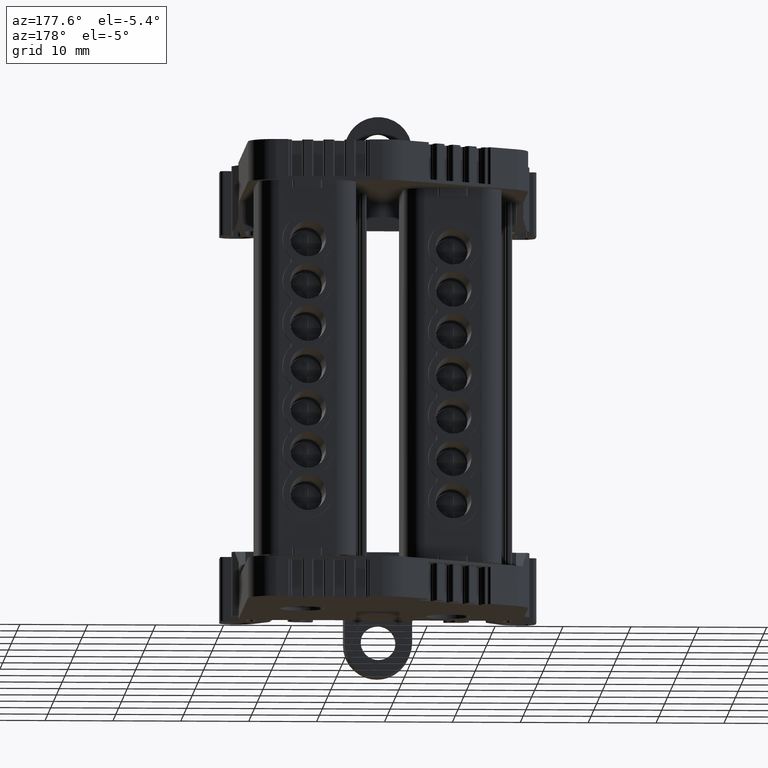
[diagram: clean part render]
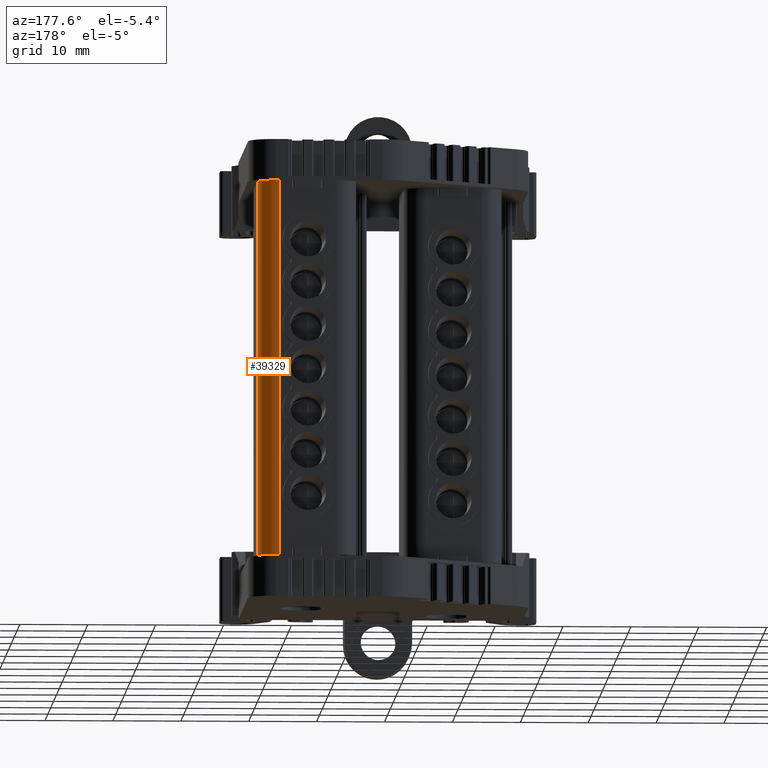
[diagram: same view with one face highlighted and labeled with its STEP entity id]
A machine part, auxiliary view. The second image highlights one B-rep face of the part: STEP entity #39329.
In plain terms, the highlighted cylindrical surface (edge-blend (fillet) strip) has radius 3.0101 mm, axis along (-0, 0, -1).
Its self-contained STEP definition (entity closure, byte-faithful):
#12278 = ORIENTED_EDGE ( 'NONE', *, *, #16556, .F. ) ;
#12439 = ORIENTED_EDGE ( 'NONE', *, *, #16567, .T. ) ;
#12453 = ORIENTED_EDGE ( 'NONE', *, *, #16737, .T. ) ;
#12484 = ORIENTED_EDGE ( 'NONE', *, *, #16583, .F. ) ;
#16556 = EDGE_CURVE ( 'NONE', #26775, #26595, #51081, .T. ) ;
#16567 = EDGE_CURVE ( 'NONE', #26775, #26769, #38124, .T. ) ;
#16583 = EDGE_CURVE ( 'NONE', #26596, #26769, #51154, .T. ) ;
#16737 = EDGE_CURVE ( 'NONE', #26596, #26595, #38214, .T. ) ;
#26595 = VERTEX_POINT ( 'NONE', #54602 ) ;
#26596 = VERTEX_POINT ( 'NONE', #54578 ) ;
#26769 = VERTEX_POINT ( 'NONE', #54687 ) ;
#26775 = VERTEX_POINT ( 'NONE', #54720 ) ;
#38124 = B_SPLINE_CURVE_WITH_KNOTS ( 'NONE', 3,
 ( #51042, #51011, #51025, #51043, #51045, #51125, #51159, #51127, #51099, #51134 ),
 .UNSPECIFIED., .F., .F.,
 ( 4, 2, 2, 2, 4 ),
 ( 0.0000000000000000000, 0.2500000000000000000, 0.5000000000000000000, 0.7500000000000000000, 1.000000000000000000 ),
 .UNSPECIFIED. ) ;
#38214 = B_SPLINE_CURVE_WITH_KNOTS ( 'NONE', 3,
 ( #50317, #50300, #50293, #50310, #50331, #50287, #50290, #50319, #50282, #50298 ),
 .UNSPECIFIED., .F., .F.,
 ( 4, 2, 2, 2, 4 ),
 ( 0.0000000000000000000, 0.2500000000000000000, 0.5000000000000000000, 0.7500000000000000000, 1.000000000000000000 ),
 .UNSPECIFIED. ) ;
#39329 = ADVANCED_FACE ( 'NONE', ( #59538 ), #59546, .T. ) ;
#44874 = VECTOR ( 'NONE', #51019, 1000.000000000000000 ) ;
#44916 = VECTOR ( 'NONE', #51130, 1000.000000000000000 ) ;
#45196 = AXIS2_PLACEMENT_3D ( 'NONE', #59522, #59513, #59517 ) ;
#50282 = CARTESIAN_POINT ( 'NONE',  ( -29.95175846236156800, 48.51930653521200300, -35.81898586028649600 ) ) ;
#50287 = CARTESIAN_POINT ( 'NONE',  ( -28.50951592510267600, 47.92926953493531500, -35.81898586028732700 ) ) ;
#50290 = CARTESIAN_POINT ( 'NONE',  ( -28.84100715194396600, 48.14764025875740600, -35.81898586028714200 ) ) ;
#50293 = CARTESIAN_POINT ( 'NONE',  ( -27.42195321129537100, 46.33943659559007200, -35.81898586028799500 ) ) ;
#50298 = CARTESIAN_POINT ( 'NONE',  ( -30.34139942213868900, 48.51930653521377200, -35.81898586028619700 ) ) ;
#50300 = CARTESIAN_POINT ( 'NONE',  ( -27.33857500823795300, 45.95133830681486800, -35.81898586028804500 ) ) ;
#50310 = CARTESIAN_POINT ( 'NONE',  ( -27.72956996143400900, 47.05543397351372900, -35.81898586028780300 ) ) ;
#50317 = CARTESIAN_POINT ( 'NONE',  ( -27.33177483584219300, 45.56175669123770400, -35.81898586028808000 ) ) ;
#50319 = CARTESIAN_POINT ( 'NONE',  ( -29.56226413254808300, 48.44271428013046700, -35.81898586028672300 ) ) ;
#50331 = CARTESIAN_POINT ( 'NONE',  ( -27.95369274595702400, 47.38306361801035400, -35.81898586028767500 ) ) ;
#51011 = CARTESIAN_POINT ( 'NONE',  ( -29.95175846232945500, 48.51930653521110100, 19.47218928989222400 ) ) ;
#51019 = DIRECTION ( 'NONE',  ( 3.229646657838877000E-028, 1.604252062633021200E-014, -1.000000000000000000 ) ) ;
#51025 = CARTESIAN_POINT ( 'NONE',  ( -29.56226413251596700, 48.44271428012959300, 19.47218928989200000 ) ) ;
#51042 = CARTESIAN_POINT ( 'NONE',  ( -30.34139942212932100, 48.51930653521287700, 19.47218928989244400 ) ) ;
#51043 = CARTESIAN_POINT ( 'NONE',  ( -28.84100715191186000, 48.14764025875651800, 19.47218928989157000 ) ) ;
#51045 = CARTESIAN_POINT ( 'NONE',  ( -28.50951592507056600, 47.92926953493443400, 19.47218928989137900 ) ) ;
#51055 = CARTESIAN_POINT ( 'NONE',  ( -30.34139942213378300, 48.51930653521134900, 114.8334854718412100 ) ) ;
#51081 = LINE ( 'NONE', #51055, #44874 ) ;
#51099 = CARTESIAN_POINT ( 'NONE',  ( -27.33857500820584400, 45.95133830681395200, 19.47218928989066800 ) ) ;
#51125 = CARTESIAN_POINT ( 'NONE',  ( -27.95369274592491100, 47.38306361800947300, 19.47218928989104500 ) ) ;
#51127 = CARTESIAN_POINT ( 'NONE',  ( -27.42195321126325400, 46.33943659558916300, 19.47218928989072900 ) ) ;
#51130 = DIRECTION ( 'NONE',  ( 5.802200285984707700E-013, 1.012777827182672200E-014, 1.000000000000000000 ) ) ;
#51134 = CARTESIAN_POINT ( 'NONE',  ( -27.33177483581008400, 45.56175669123767600, 19.47218928989188300 ) ) ;
#51154 = LINE ( 'NONE', #51169, #44916 ) ;
#51159 = CARTESIAN_POINT ( 'NONE',  ( -27.72956996140190000, 47.05543397351284800, 19.47218928989091000 ) ) ;
#51169 = CARTESIAN_POINT ( 'NONE',  ( -27.33177483575436300, 45.56175669123904700, 114.8334854718341100 ) ) ;
#54578 = CARTESIAN_POINT ( 'NONE',  ( -27.33177483584219300, 45.56175669123770400, -35.81898586028808000 ) ) ;
#54602 = CARTESIAN_POINT ( 'NONE',  ( -30.34139942213868900, 48.51930653521377200, -35.81898586028619700 ) ) ;
#54687 = CARTESIAN_POINT ( 'NONE',  ( -27.33177483581008400, 45.56175669123767600, 19.47218928989188300 ) ) ;
#54720 = CARTESIAN_POINT ( 'NONE',  ( -30.34139942212932100, 48.51930653521287700, 19.47218928989244400 ) ) ;
#59513 = DIRECTION ( 'NONE',  ( -5.806768328649279700E-013, 1.604252062634190300E-014, -1.000000000000000000 ) ) ;
#59517 = DIRECTION ( 'NONE',  ( -1.000000000000000000, 0.0000000000000000000, 5.809146267919581000E-013 ) ) ;
#59522 = CARTESIAN_POINT ( 'NONE',  ( -30.34139942206976000, 45.50922349867103400, 114.8334854718364400 ) ) ;
#59538 = FACE_OUTER_BOUND ( 'NONE', #67585, .T. ) ;
#59546 = CYLINDRICAL_SURFACE ( 'NONE', #45196, 3.010083036540315900 ) ;
#67585 = EDGE_LOOP ( 'NONE', ( #12484, #12453, #12278, #12439 ) ) ;